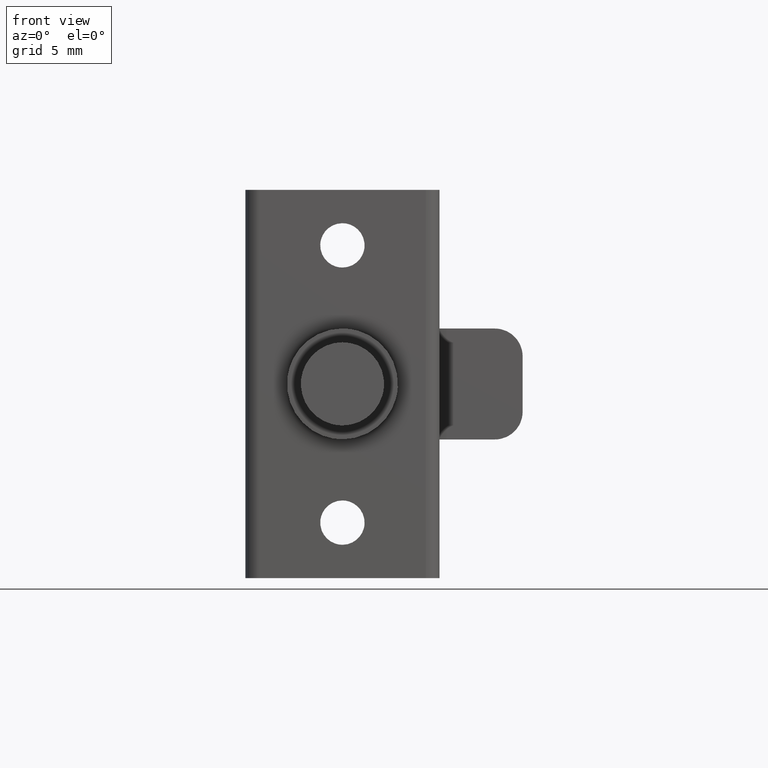
[diagram: clean part render]
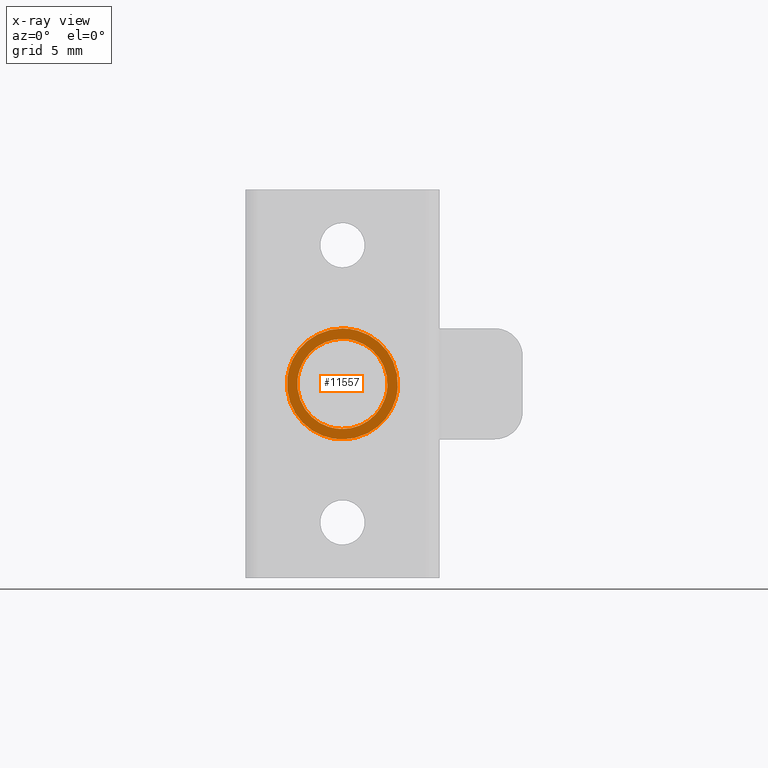
[diagram: x-ray — body ghosted, one internal face saturated and labeled with its STEP entity id]
A machine part, front view, then the same camera in x-ray: the body is ghosted and one INTERNAL B-rep face — a face not visible from any outside direction — is saturated and labeled: STEP entity #11557.
In plain terms, the highlighted face is a freeform B-spline surface patch.
Its self-contained STEP definition (entity closure, byte-faithful):
#10094=CARTESIAN_POINT('',(-7.564648E-016,-3.243938311741328,-0.198404207627256));
#10095=VERTEX_POINT('',#10094);
#10101=CARTESIAN_POINT('',(-5.969956E-016,0.0,-3.250000000000000));
#10102=VERTEX_POINT('',#10101);
#10103=CARTESIAN_POINT('',(-5.969956E-016,0.0,-3.250000000000000));
#10104=CARTESIAN_POINT('',(-5.969956E-016,-3.057298065536070,-3.250000000000001));
#10105=CARTESIAN_POINT('',(-7.564648E-016,-3.243938311741328,-0.198404207627256));
#10113=(BOUNDED_CURVE()B_SPLINE_CURVE(2,(#10103,#10104,#10105),.UNSPECIFIED.,.F.,.U.)B_SPLINE_CURVE_WITH_KNOTS((3,3),(0.500000000000000,0.739333150848226),.UNSPECIFIED.)CURVE()GEOMETRIC_REPRESENTATION_ITEM()RATIONAL_B_SPLINE_CURVE((1.0,0.719603772317190,0.976072445892648))REPRESENTATION_ITEM(''));
#10114=EDGE_CURVE('',#10102,#10095,#10113,.T.);
#10116=CARTESIAN_POINT('',(-5.753421E-016,3.227280960677063,0.383611262675289));
#10117=VERTEX_POINT('',#10116);
#10118=CARTESIAN_POINT('',(-5.753421E-016,3.227280960677063,0.383611262675289));
#10119=CARTESIAN_POINT('',(-5.969956E-016,3.250000000000000,0.192478388909964));
#10120=CARTESIAN_POINT('',(-5.969956E-016,3.250000000000000,0.0));
#10121=CARTESIAN_POINT('',(-5.969956E-016,3.250000000000000,-3.250000000000000));
#10122=CARTESIAN_POINT('',(-5.969956E-016,0.0,-3.250000000000000));
#10130=(BOUNDED_CURVE()B_SPLINE_CURVE(2,(#10118,#10119,#10120,#10121,#10122),.UNSPECIFIED.,.F.,.U.)B_SPLINE_CURVE_WITH_KNOTS((3,2,3),(0.229562473511369,0.250000000000000,0.500000000000000),.UNSPECIFIED.)CURVE()GEOMETRIC_REPRESENTATION_ITEM()RATIONAL_B_SPLINE_CURVE((0.956026754179505,0.976055948328638,1.0,0.707106781186547,1.0))REPRESENTATION_ITEM(''));
#10131=EDGE_CURVE('',#10117,#10102,#10130,.T.);
#10175=CARTESIAN_POINT('',(-5.969956E-016,0.0,3.250000000000000));
#10176=VERTEX_POINT('',#10175);
#10177=CARTESIAN_POINT('',(-5.969956E-016,0.0,3.250000000000000));
#10178=CARTESIAN_POINT('',(-5.969956E-016,2.886567209268405,3.250000000000000));
#10179=CARTESIAN_POINT('',(-5.753421E-016,3.227280960677063,0.383611262675289));
#10187=(BOUNDED_CURVE()B_SPLINE_CURVE(2,(#10177,#10178,#10179),.UNSPECIFIED.,.F.,.U.)B_SPLINE_CURVE_WITH_KNOTS((3,3),(0.0,0.229562473511369),.UNSPECIFIED.)CURVE()GEOMETRIC_REPRESENTATION_ITEM()RATIONAL_B_SPLINE_CURVE((1.0,0.731050832857909,0.956026754179506))REPRESENTATION_ITEM(''));
#10188=EDGE_CURVE('',#10176,#10117,#10187,.T.);
#10190=CARTESIAN_POINT('',(-7.564648E-016,-3.243938311741328,-0.198404207627256));
#10191=CARTESIAN_POINT('',(-5.969956E-016,-3.250000000000000,-0.099294702818923));
#10192=CARTESIAN_POINT('',(-5.969956E-016,-3.250000000000000,0.0));
#10193=CARTESIAN_POINT('',(-5.969956E-016,-3.250000000000000,3.250000000000000));
#10194=CARTESIAN_POINT('',(-5.969956E-016,0.0,3.250000000000000));
#10202=(BOUNDED_CURVE()B_SPLINE_CURVE(2,(#10190,#10191,#10192,#10193,#10194),.UNSPECIFIED.,.F.,.U.)B_SPLINE_CURVE_WITH_KNOTS((3,2,3),(0.739333150848226,0.750000000000000,1.0),.UNSPECIFIED.)CURVE()GEOMETRIC_REPRESENTATION_ITEM()RATIONAL_B_SPLINE_CURVE((0.976072445892648,0.987503008869357,1.0,0.707106781186547,1.0))REPRESENTATION_ITEM(''));
#10203=EDGE_CURVE('',#10095,#10176,#10202,.T.);
#10246=CARTESIAN_POINT('',(-7.422292E-016,3.972038105450730,0.472136938660137));
#10247=VERTEX_POINT('',#10246);
#10248=CARTESIAN_POINT('',(-8.881784E-016,0.0,-4.0));
#10249=VERTEX_POINT('',#10248);
#10250=CARTESIAN_POINT('',(-7.422292E-016,3.972038105450730,0.472136938660137));
#10251=CARTESIAN_POINT('',(-8.881784E-016,4.000000000000001,0.236896478641093));
#10252=CARTESIAN_POINT('',(-8.881784E-016,4.0,0.0));
#10253=CARTESIAN_POINT('',(-8.881784E-016,4.000000000000000,-4.000000000000000));
#10254=CARTESIAN_POINT('',(-8.881784E-016,0.0,-4.0));
#10262=(BOUNDED_CURVE()B_SPLINE_CURVE(2,(#10250,#10251,#10252,#10253,#10254),.UNSPECIFIED.,.F.,.U.)B_SPLINE_CURVE_WITH_KNOTS((3,2,3),(0.229562473512827,0.250000000000000,0.500000000000000),.UNSPECIFIED.)CURVE()GEOMETRIC_REPRESENTATION_ITEM()RATIONAL_B_SPLINE_CURVE((0.956026754182364,0.976055948330347,1.0,0.707106781186548,1.0))REPRESENTATION_ITEM(''));
#10263=EDGE_CURVE('',#10247,#10249,#10262,.T.);
#10265=CARTESIAN_POINT('',(-7.563394E-016,-3.992539193684950,-0.244194158180590));
#10266=VERTEX_POINT('',#10265);
#10267=CARTESIAN_POINT('',(-8.881784E-016,0.0,-4.0));
#10268=CARTESIAN_POINT('',(-8.881784E-016,-3.762824267545035,-4.000000000000000));
#10269=CARTESIAN_POINT('',(-7.563394E-016,-3.992539193684949,-0.244194158180590));
#10277=(BOUNDED_CURVE()B_SPLINE_CURVE(2,(#10267,#10268,#10269),.UNSPECIFIED.,.F.,.U.)B_SPLINE_CURVE_WITH_KNOTS((3,3),(0.500000000000000,0.739332962238410),.UNSPECIFIED.)CURVE()GEOMETRIC_REPRESENTATION_ITEM()RATIONAL_B_SPLINE_CURVE((1.0,0.719603993287335,0.976072041665575))REPRESENTATION_ITEM(''));
#10278=EDGE_CURVE('',#10249,#10266,#10277,.T.);
#10345=CARTESIAN_POINT('',(-8.881784E-016,0.0,4.0));
#10346=VERTEX_POINT('',#10345);
#10347=CARTESIAN_POINT('',(-8.881784E-016,0.0,4.0));
#10348=CARTESIAN_POINT('',(-8.881784E-016,3.552698103745836,4.0));
#10349=CARTESIAN_POINT('',(-7.422292E-016,3.972038105450730,0.472136938660137));
#10357=(BOUNDED_CURVE()B_SPLINE_CURVE(2,(#10347,#10348,#10349),.UNSPECIFIED.,.F.,.U.)B_SPLINE_CURVE_WITH_KNOTS((3,3),(0.0,0.229562473512827),.UNSPECIFIED.)CURVE()GEOMETRIC_REPRESENTATION_ITEM()RATIONAL_B_SPLINE_CURVE((1.0,0.731050832856201,0.956026754182364))REPRESENTATION_ITEM(''));
#10358=EDGE_CURVE('',#10346,#10247,#10357,.T.);
#10392=CARTESIAN_POINT('',(-7.563394E-016,-3.992539193684949,-0.244194158180590));
#10393=CARTESIAN_POINT('',(-8.881784E-016,-4.000000000000001,-0.122211053235633));
#10394=CARTESIAN_POINT('',(-8.881784E-016,-4.0,0.0));
#10395=CARTESIAN_POINT('',(-8.881784E-016,-4.000000000000000,4.000000000000000));
#10396=CARTESIAN_POINT('',(-8.881784E-016,0.0,4.0));
#10404=(BOUNDED_CURVE()B_SPLINE_CURVE(2,(#10392,#10393,#10394,#10395,#10396),.UNSPECIFIED.,.F.,.U.)B_SPLINE_CURVE_WITH_KNOTS((3,2,3),(0.739332962238411,0.750000000000000,1.0),.UNSPECIFIED.)CURVE()GEOMETRIC_REPRESENTATION_ITEM()RATIONAL_B_SPLINE_CURVE((0.976072041665577,0.987502787899214,1.0,0.707106781186548,1.0))REPRESENTATION_ITEM(''));
#10405=EDGE_CURVE('',#10266,#10346,#10404,.T.);
#11540=CARTESIAN_POINT('',(-7.425870E-016,-4.399502628049794,4.399599984494448));
#11541=CARTESIAN_POINT('',(-7.425870E-016,-4.399502628049794,-4.399600199071169));
#11542=CARTESIAN_POINT('',(-7.425870E-016,4.399527232847158,4.399599984494448));
#11543=CARTESIAN_POINT('',(-7.425870E-016,4.399527232847158,-4.399600199071169));
#11544=B_SPLINE_SURFACE_WITH_KNOTS('',1,1,((#11540,#11542),(#11541,#11543)),.UNSPECIFIED.,.F.,.F.,.U.,(2,2),(2,2),(0.0,8.799200183565617),(0.0,8.799029860896953),.UNSPECIFIED.);
#11545=ORIENTED_EDGE('',*,*,#10405,.F.);
#11546=ORIENTED_EDGE('',*,*,#10278,.F.);
#11547=ORIENTED_EDGE('',*,*,#10263,.F.);
#11548=ORIENTED_EDGE('',*,*,#10358,.F.);
#11549=EDGE_LOOP('',(#11545,#11546,#11547,#11548));
#11550=FACE_OUTER_BOUND('',#11549,.T.);
#11551=ORIENTED_EDGE('',*,*,#10114,.T.);
#11552=ORIENTED_EDGE('',*,*,#10203,.T.);
#11553=ORIENTED_EDGE('',*,*,#10188,.T.);
#11554=ORIENTED_EDGE('',*,*,#10131,.T.);
#11555=EDGE_LOOP('',(#11551,#11552,#11553,#11554));
#11556=FACE_BOUND('',#11555,.T.);
#11557=ADVANCED_FACE('',(#11550,#11556),#11544,.T.);